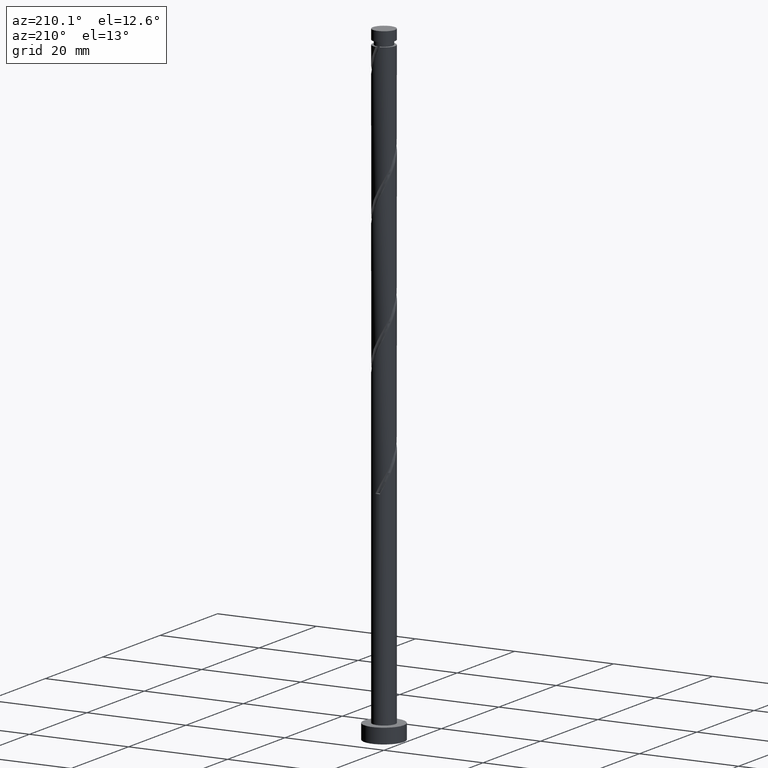
[diagram: clean part render]
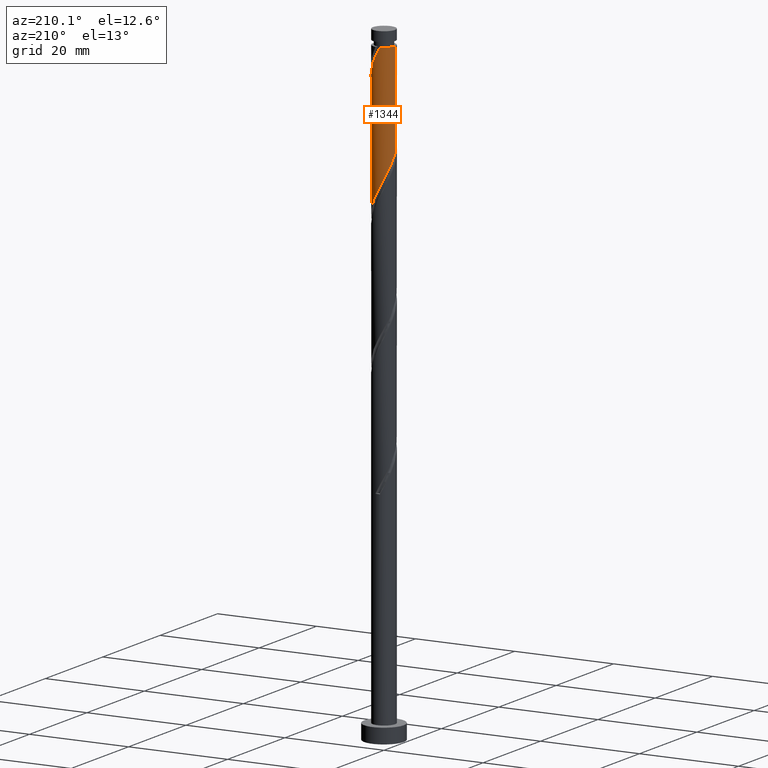
[diagram: same view with one face highlighted and labeled with its STEP entity id]
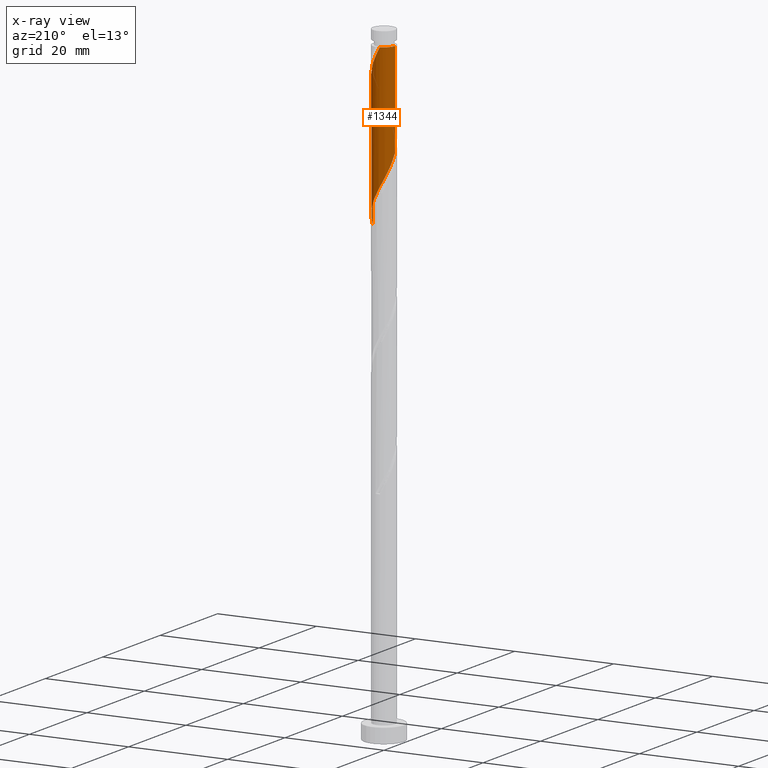
[diagram: x-ray of the same camera — body ghosted, the highlighted face saturated]
A machine part, auxiliary view. The second image highlights one B-rep face of the part: STEP entity #1344.
The next image is the same camera in x-ray: the body ghosted, the highlighted face saturated — about 0% of this face is hidden behind the body in this view.
In plain terms, the highlighted cylindrical surface (edge-blend (fillet) strip) has radius 2.25 mm, axis along (-0, -0, -1).
Its self-contained STEP definition (entity closure, byte-faithful):
#17 = ORIENTED_EDGE ( 'NONE', *, *, #772, .F. ) ;
#20 = CARTESIAN_POINT ( 'NONE',  ( 0.7647754849568956237, 2.140624081685869928, 97.13751671168245139 ) ) ;
#28 = VERTEX_POINT ( 'NONE', #584 ) ;
#35 = VERTEX_POINT ( 'NONE', #996 ) ;
#55 = EDGE_CURVE ( 'NONE', #590, #35, #1221, .T. ) ;
#110 = CARTESIAN_POINT ( 'NONE',  ( -2.246276943635557188, 0.1293827364500365895, 105.0163045904703267 ) ) ;
#130 = EDGE_CURVE ( 'NONE', #454, #35, #1169, .T. ) ;
#151 = CARTESIAN_POINT ( 'NONE',  ( 1.568779515954456416, 1.612895170282836022, 95.31933489350060995 ) ) ;
#157 = CARTESIAN_POINT ( 'NONE',  ( 2.118597173968805869, 0.8238319100010145224, 93.50115307531881115 ) ) ;
#198 = CARTESIAN_POINT ( 'NONE',  ( 2.227674514516373439, 0.4523486032461992989, 117.7435773177430320 ) ) ;
#200 = ORIENTED_EDGE ( 'NONE', *, *, #55, .T. ) ;
#204 = CARTESIAN_POINT ( 'NONE',  ( -0.1307132084390656424, 2.269375918314133322, 123.8041833783491086 ) ) ;
#212 = CARTESIAN_POINT ( 'NONE',  ( 2.250000000000003109, 1.263851349445444954E-15, 116.8941228384421578 ) ) ;
#216 = CARTESIAN_POINT ( 'NONE',  ( 2.250000000000003553, 1.263851349445444954E-15, 116.8941228384421578 ) ) ;
#219 = CARTESIAN_POINT ( 'NONE',  ( 1.116954303204339860, 1.979789404466509417, 121.3799409541066581 ) ) ;
#225 = CARTESIAN_POINT ( 'NONE',  ( -1.819738826151650057, 1.323272687164747330, 102.5920621662279046 ) ) ;
#242 = CARTESIAN_POINT ( 'NONE',  ( 2.250000000000000000, -2.505267467835666472E-15, 91.92636513037726331 ) ) ;
#259 = ORIENTED_EDGE ( 'NONE', *, *, #130, .F. ) ;
#277 = CARTESIAN_POINT ( 'NONE',  ( 2.191738273361774958, 0.5087075201735703489, 92.89509246925821628 ) ) ;
#346 = CARTESIAN_POINT ( 'NONE',  ( 2.009996715602345940, 1.061633743224248416, 118.9556985298642644 ) ) ;
#350 = CARTESIAN_POINT ( 'NONE',  ( -2.249999999999999556, 0.06474493467860317764, 105.1376004589923667 ) ) ;
#384 = CARTESIAN_POINT ( 'NONE',  ( -0.5139386748451186815, 2.214276414538838278, 99.56175913592485927 ) ) ;
#410 = DIRECTION ( 'NONE',  ( -0.000000000000000000, -0.000000000000000000, -1.000000000000000000 ) ) ;
#420 = CARTESIAN_POINT ( 'NONE',  ( 0.4477443466979798004, 2.204999999999999627, 97.74357731774306046 ) ) ;
#430 =( BOUNDED_CURVE ( )  B_SPLINE_CURVE ( 2, ( #1144, #350, #110, #1655, #1529, #1377, #225, #745, #1026, #1537, #1134, #384, #899, #1069, #420, #20, #1445, #1580, #151, #667, #544, #157, #277, #1285, #553 ),
 .UNSPECIFIED., .F., .T. ) 
 B_SPLINE_CURVE_WITH_KNOTS ( ( 3, 2, 2, 2, 2, 2, 2, 2, 2, 2, 2, 2, 3 ),
 ( 0.4295252162417514397, 0.4318181818181818232, 0.4431818181818181768, 0.4545454545454545303, 0.4659090909090908839, 0.4772727272727272929, 0.4886363636363636465, 0.5000000000000000000, 0.5113636363636363535, 0.5227272727272727071, 0.5340909090909090606, 0.5454545454545454142, 0.5545252162417515507 ),
 .UNSPECIFIED. ) 
 CURVE ( )  GEOMETRIC_REPRESENTATION_ITEM ( )  RATIONAL_B_SPLINE_CURVE ( ( 0.9061101570135543515, 0.9072237824201364598, 0.9090909090909138346, 0.8998376744372161840, 0.9090909090909138346, 0.8998376744372161840, 0.9090909090909138346, 0.8998376744372161840, 0.9090909090909138346, 0.8998376744372161840, 0.9090909090909138346, 0.8998376744372161840, 0.9090909090909138346, 0.8998376744372161840, 0.9090909090909138346, 0.8998376744372161840, 0.9090909090909138346, 0.8998376744372161840, 0.9090909090909138346, 0.8998376744372161840, 0.9090909090909138346, 0.8998376744372161840, 0.9090909090909138346, 0.9017048011079935588, 0.9061101570135544625 ) ) 
 REPRESENTATION_ITEM ( '' )  );
#454 = VERTEX_POINT ( 'NONE', #216 ) ;
#461 = CARTESIAN_POINT ( 'NONE',  ( 0.8154464890247296038, 2.097032909502675402, 121.9860015601672671 ) ) ;
#522 = AXIS2_PLACEMENT_3D ( 'NONE', #1438, #410, #686 ) ;
#544 = CARTESIAN_POINT ( 'NONE',  ( 1.959638002949629865, 1.105585318912830406, 94.10721368137942022 ) ) ;
#553 = CARTESIAN_POINT ( 'NONE',  ( 2.250000000000000000, -2.505267467835666078E-15, 91.92636513037726331 ) ) ;
#584 = CARTESIAN_POINT ( 'NONE',  ( -2.249999999999999556, 8.286078669737068893E-15, 105.2596984637105919 ) ) ;
#590 = VERTEX_POINT ( 'NONE', #1621 ) ;
#610 = CARTESIAN_POINT ( 'NONE',  ( 2.118835615059359689, 0.7569911732352236911, 118.3496379238036411 ) ) ;
#622 = LINE ( 'NONE', #1269, #1495 ) ;
#638 = ORIENTED_EDGE ( 'NONE', *, *, #703, .F. ) ;
#667 = CARTESIAN_POINT ( 'NONE',  ( 1.800678831930454749, 1.387338727824644513, 94.71327428744000088 ) ) ;
#686 = DIRECTION ( 'NONE',  ( -1.000000000000000000, 0.000000000000000000, 0.000000000000000000 ) ) ;
#703 = EDGE_CURVE ( 'NONE', #590, #28, #1644, .T. ) ;
#704 = VERTEX_POINT ( 'NONE', #242 ) ;
#718 = CARTESIAN_POINT ( 'NONE',  ( 1.629480936700962834, 1.584911631105248686, 120.1678197419854541 ) ) ;
#734 = CARTESIAN_POINT ( 'NONE',  ( 2.250000000000003109, 0.06474493467860155393, 117.0162208431603545 ) ) ;
#745 = CARTESIAN_POINT ( 'NONE',  ( -1.629480936700959504, 1.584911631105246910, 101.9860015601672956 ) ) ;
#772 = EDGE_CURVE ( 'NONE', #28, #704, #430, .T. ) ;
#892 = DIRECTION ( 'NONE',  ( -0.000000000000000000, -0.000000000000000000, -1.000000000000000000 ) ) ;
#899 = CARTESIAN_POINT ( 'NONE',  ( -0.1916127332030278241, 2.241826166426482914, 98.95569852986426440 ) ) ;
#956 = VECTOR ( 'NONE', #1253, 1000.000000000000000 ) ;
#964 = CARTESIAN_POINT ( 'NONE',  ( 1.819738826151654498, 1.323272687164748662, 119.5617591359248593 ) ) ;
#996 = CARTESIAN_POINT ( 'NONE',  ( -0.4477443466979789677, 2.205000000000003180, 124.4102439844097034 ) ) ;
#1026 = CARTESIAN_POINT ( 'NONE',  ( -1.373217619952648461, 1.782350517785876720, 101.3799409541066723 ) ) ;
#1069 = CARTESIAN_POINT ( 'NONE',  ( 0.1307132084390630333, 2.269375918314128882, 98.34963792380364112 ) ) ;
#1070 = FACE_OUTER_BOUND ( 'NONE', #1131, .T. ) ;
#1078 = ORIENTED_EDGE ( 'NONE', *, *, #1200, .T. ) ;
#1100 = CARTESIAN_POINT ( 'NONE',  ( 2.246276943635560297, 0.1293827364500358956, 117.1375167116824372 ) ) ;
#1131 = EDGE_LOOP ( 'NONE', ( #259, #1078, #17, #638, #200 ) ) ;
#1134 = CARTESIAN_POINT ( 'NONE',  ( -0.8154464890247281605, 2.097032909502672293, 100.1678197419854826 ) ) ;
#1144 = CARTESIAN_POINT ( 'NONE',  ( -2.249999999999999556, 8.286078669737070471E-15, 105.2596984637105919 ) ) ;
#1169 =( BOUNDED_CURVE ( )  B_SPLINE_CURVE ( 2, ( #212, #734, #1100, #198, #610, #346, #964, #718, #1609, #219, #461, #1487, #1358, #204, #1241 ),
 .UNSPECIFIED., .F., .T. ) 
 B_SPLINE_CURVE_WITH_KNOTS ( ( 3, 2, 2, 2, 2, 2, 2, 3 ),
 ( 0.6795252162417514397, 0.6818181818181818787, 0.6931818181818181213, 0.7045454545454545858, 0.7159090909090908283, 0.7272727272727274039, 0.7386363636363637575, 0.7500000000000001110 ),
 .UNSPECIFIED. ) 
 CURVE ( )  GEOMETRIC_REPRESENTATION_ITEM ( )  RATIONAL_B_SPLINE_CURVE ( ( 0.9061101570135616790, 0.9072237824201438983, 0.9090909090909213841, 0.8998376744372236224, 0.9090909090909213841, 0.8998376744372236224, 0.9090909090909213841, 0.8998376744372236224, 0.9090909090909213841, 0.8998376744372236224, 0.9090909090909213841, 0.8998376744372236224, 0.9090909090909213841, 0.8998376744372235114, 0.9090909090909214951 ) ) 
 REPRESENTATION_ITEM ( '' )  );
#1177 = CYLINDRICAL_SURFACE ( 'NONE', #522, 2.250000000000000000 ) ;
#1200 = EDGE_CURVE ( 'NONE', #454, #704, #622, .T. ) ;
#1221 = CIRCLE ( 'NONE', #1464, 2.249999999999996891 ) ;
#1241 = CARTESIAN_POINT ( 'NONE',  ( -0.4477443466979789677, 2.205000000000003180, 124.4102439844097034 ) ) ;
#1253 = DIRECTION ( 'NONE',  ( -0.000000000000000000, -0.000000000000000000, -1.000000000000000000 ) ) ;
#1269 = CARTESIAN_POINT ( 'NONE',  ( 2.250000000000000000, 2.755455298081544285E-16, 127.2999999999999972 ) ) ;
#1285 = CARTESIAN_POINT ( 'NONE',  ( 2.250000000000000888, 0.2576900866165183213, 92.41232508334856277 ) ) ;
#1344 = ADVANCED_FACE ( 'NONE', ( #1070 ), #1177, .T. ) ;
#1358 = CARTESIAN_POINT ( 'NONE',  ( 0.1916127332030286845, 2.241826166426486910, 123.1981227722884853 ) ) ;
#1377 = CARTESIAN_POINT ( 'NONE',  ( -2.009996715602341499, 1.061633743224248194, 103.1981227722885137 ) ) ;
#1438 = CARTESIAN_POINT ( 'NONE',  ( 0.000000000000000000, 0.000000000000000000, 127.2999999999999972 ) ) ;
#1445 = CARTESIAN_POINT ( 'NONE',  ( 1.050827842467677131, 1.989537847213448618, 96.53145610562184231 ) ) ;
#1464 = AXIS2_PLACEMENT_3D ( 'NONE', #1624, #1617, #1496 ) ;
#1487 = CARTESIAN_POINT ( 'NONE',  ( 0.5139386748451200138, 2.214276414538841831, 122.5920621662278904 ) ) ;
#1495 = VECTOR ( 'NONE', #892, 1000.000000000000000 ) ;
#1496 = DIRECTION ( 'NONE',  ( -1.000000000000000000, 0.000000000000000000, 0.000000000000000000 ) ) ;
#1507 = CARTESIAN_POINT ( 'NONE',  ( -2.250000000000000000, 0.000000000000000000, 127.2999999999999972 ) ) ;
#1529 = CARTESIAN_POINT ( 'NONE',  ( -2.118835615059355248, 0.7569911732352234690, 103.8041833783491228 ) ) ;
#1537 = CARTESIAN_POINT ( 'NONE',  ( -1.116954303204337862, 1.979789404466505864, 100.7738803480460916 ) ) ;
#1580 = CARTESIAN_POINT ( 'NONE',  ( 1.336880199978458528, 1.838451612741027752, 95.92539549956123324 ) ) ;
#1609 = CARTESIAN_POINT ( 'NONE',  ( 1.373217619952650459, 1.782350517785879385, 120.7738803480460916 ) ) ;
#1617 = DIRECTION ( 'NONE',  ( -0.000000000000000000, -0.000000000000000000, -1.000000000000000000 ) ) ;
#1621 = CARTESIAN_POINT ( 'NONE',  ( -2.249999999999996891, 0.000000000000000000, 124.4102439844097034 ) ) ;
#1624 = CARTESIAN_POINT ( 'NONE',  ( 0.000000000000000000, 0.000000000000000000, 124.4102439844097034 ) ) ;
#1644 = LINE ( 'NONE', #1507, #956 ) ;
#1655 = CARTESIAN_POINT ( 'NONE',  ( -2.227674514516370330, 0.4523486032461996320, 104.4102439844097034 ) ) ;